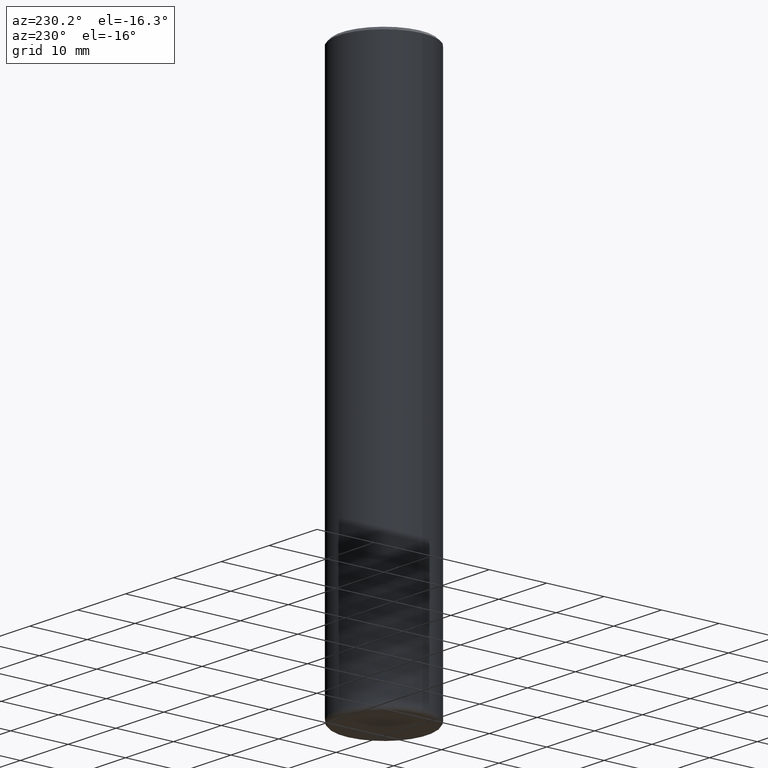
[diagram: clean part render]
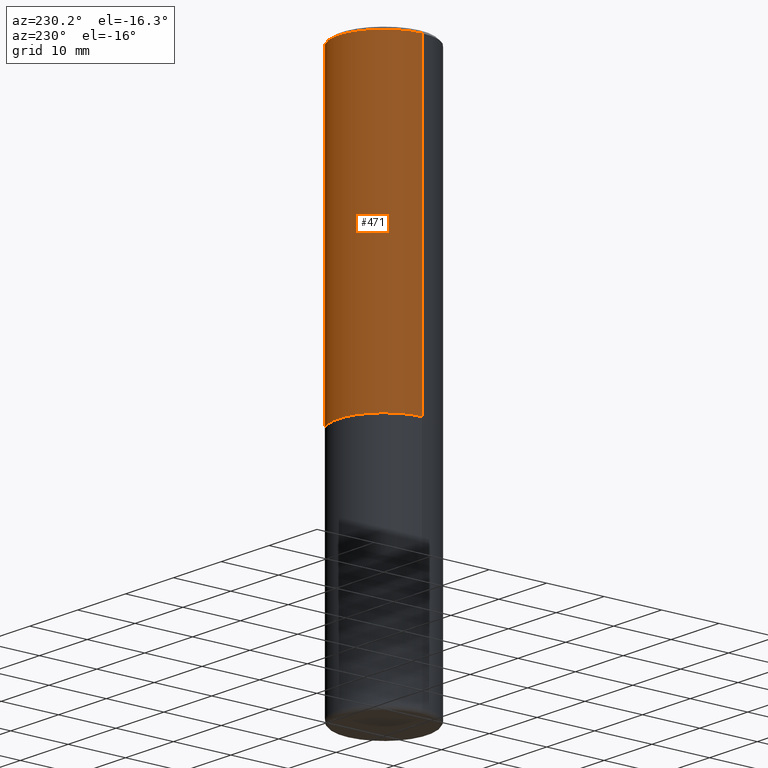
[diagram: same view with one face highlighted and labeled with its STEP entity id]
A machine part, auxiliary view. The second image highlights one B-rep face of the part: STEP entity #471.
In plain terms, the highlighted cylindrical surface (partial cylindrical patch) has radius 7.9375 mm, axis along (-0, 0, 1).
Its self-contained STEP definition (entity closure, byte-faithful):
#5 = LINE ( 'NONE', #155, #463 ) ;
#15 = CARTESIAN_POINT ( 'NONE',  ( 0.000000000000000000, 0.000000000000000000, 0.000000000000000000 ) ) ;
#16 = DIRECTION ( 'NONE',  ( 1.000000000000000000, -6.982962677686267499E-15, 4.876176775795935793E-29 ) ) ;
#23 = AXIS2_PLACEMENT_3D ( 'NONE', #56, #201, #163 ) ;
#30 = EDGE_CURVE ( 'NONE', #190, #212, #323, .T. ) ;
#36 = FACE_OUTER_BOUND ( 'NONE', #78, .T. ) ;
#47 = ORIENTED_EDGE ( 'NONE', *, *, #383, .T. ) ;
#54 = CARTESIAN_POINT ( 'NONE',  ( 0.3124999999999993339, -2.213735251080462573E-15, -0.02000000000000014960 ) ) ;
#56 = CARTESIAN_POINT ( 'NONE',  ( 5.194175744337230786E-29, -7.415906363702842194E-15, -2.124000000000000110 ) ) ;
#73 = ORIENTED_EDGE ( 'NONE', *, *, #30, .F. ) ;
#78 = EDGE_LOOP ( 'NONE', ( #47, #460, #73, #312 ) ) ;
#85 = AXIS2_PLACEMENT_3D ( 'NONE', #15, #318, #16 ) ;
#121 = CIRCLE ( 'NONE', #23, 0.3124999999999996114 ) ;
#124 = VERTEX_POINT ( 'NONE', #356 ) ;
#143 = CARTESIAN_POINT ( 'NONE',  ( -0.3124999999999993339, 2.112346210000090316E-15, -0.02000000000000014960 ) ) ;
#148 = DIRECTION ( 'NONE',  ( -2.445468806185136597E-29, 3.491481338843145583E-15, 1.000000000000000000 ) ) ;
#155 = CARTESIAN_POINT ( 'NONE',  ( -0.3124999999999994449, 2.220446049250309137E-15, -1.537167215704655429E-29 ) ) ;
#163 = DIRECTION ( 'NONE',  ( 1.000000000000000000, -6.982962677686269077E-15, 0.000000000000000000 ) ) ;
#178 = CARTESIAN_POINT ( 'NONE',  ( 0.3124999999999994449, -2.182175836776954797E-15, 1.523805242436227273E-29 ) ) ;
#190 = VERTEX_POINT ( 'NONE', #54 ) ;
#201 = DIRECTION ( 'NONE',  ( -2.445468806185136597E-29, 3.491481338843145583E-15, 1.000000000000000000 ) ) ;
#212 = VERTEX_POINT ( 'NONE', #143 ) ;
#223 = CARTESIAN_POINT ( 'NONE',  ( 4.890937612370309067E-31, -6.982962677686343378E-17, -0.02000000000000014960 ) ) ;
#251 = LINE ( 'NONE', #178, #297 ) ;
#279 = CYLINDRICAL_SURFACE ( 'NONE', #85, 0.3124999999999994449 ) ;
#297 = VECTOR ( 'NONE', #327, 39.37007874015748143 ) ;
#301 = CARTESIAN_POINT ( 'NONE',  ( -0.3124999999999996114, -1.522421945989539863E-15, -2.124000000000000110 ) ) ;
#303 = DIRECTION ( 'NONE',  ( 1.000000000000000000, -6.982962677686266711E-15, 0.000000000000000000 ) ) ;
#310 = DIRECTION ( 'NONE',  ( -2.445468806185136877E-29, 3.491481338843145188E-15, 1.000000000000000000 ) ) ;
#312 = ORIENTED_EDGE ( 'NONE', *, *, #461, .F. ) ;
#318 = DIRECTION ( 'NONE',  ( -2.445468806185136597E-29, 3.491481338843145583E-15, 1.000000000000000000 ) ) ;
#323 = CIRCLE ( 'NONE', #489, 0.3124999999999993339 ) ;
#327 = DIRECTION ( 'NONE',  ( -2.445468806185136877E-29, 3.491481338843145188E-15, 1.000000000000000000 ) ) ;
#356 = CARTESIAN_POINT ( 'NONE',  ( 0.3124999999999996114, -9.598082200479797386E-15, -2.124000000000000110 ) ) ;
#380 = EDGE_CURVE ( 'NONE', #465, #212, #5, .T. ) ;
#383 = EDGE_CURVE ( 'NONE', #124, #465, #121, .T. ) ;
#460 = ORIENTED_EDGE ( 'NONE', *, *, #380, .T. ) ;
#461 = EDGE_CURVE ( 'NONE', #124, #190, #251, .T. ) ;
#463 = VECTOR ( 'NONE', #310, 39.37007874015748143 ) ;
#465 = VERTEX_POINT ( 'NONE', #301 ) ;
#471 = ADVANCED_FACE ( 'NONE', ( #36 ), #279, .T. ) ;
#489 = AXIS2_PLACEMENT_3D ( 'NONE', #223, #148, #303 ) ;